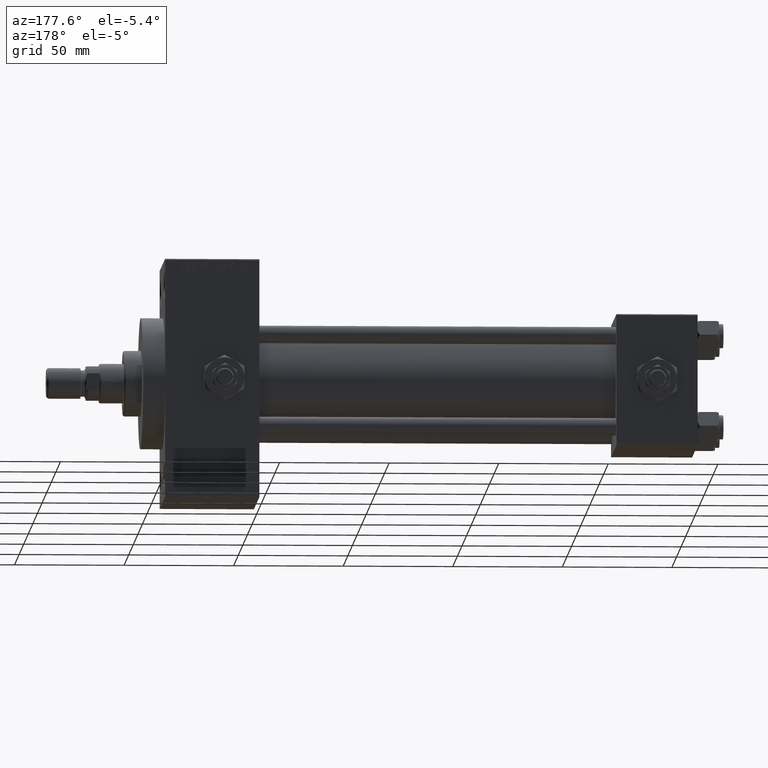
[diagram: clean part render]
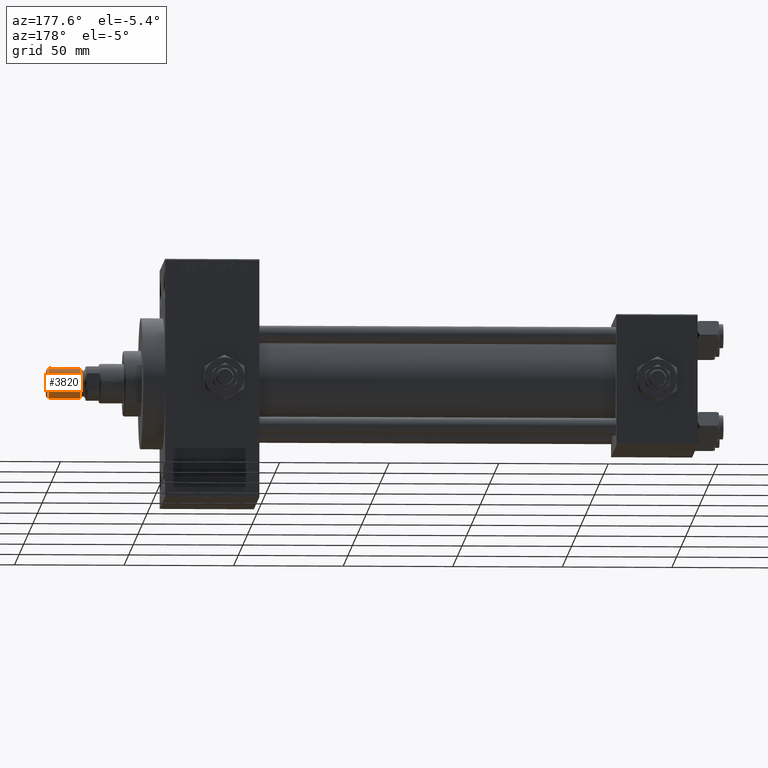
[diagram: same view with one face highlighted and labeled with its STEP entity id]
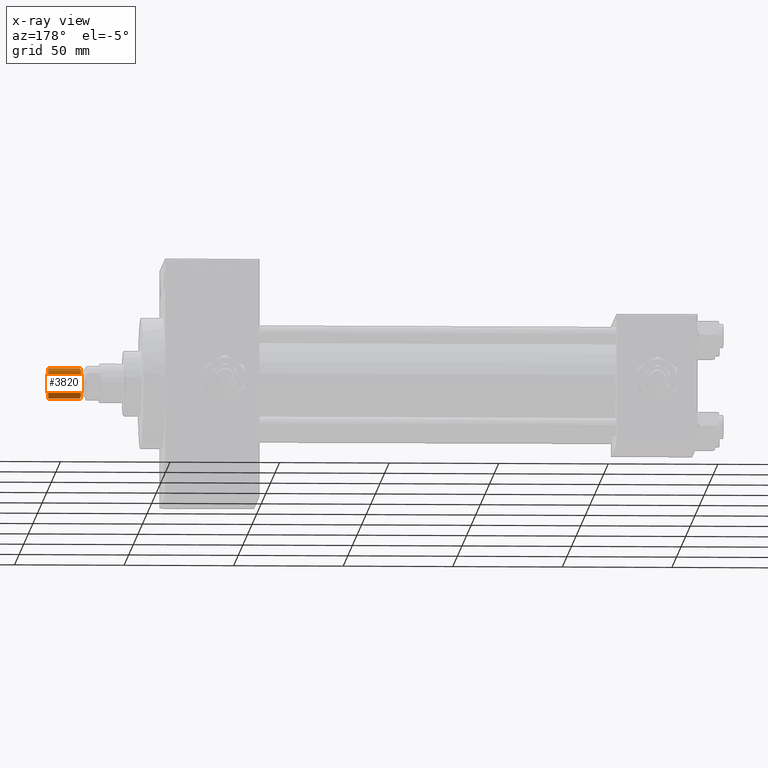
[diagram: x-ray of the same camera — body ghosted, the highlighted face saturated]
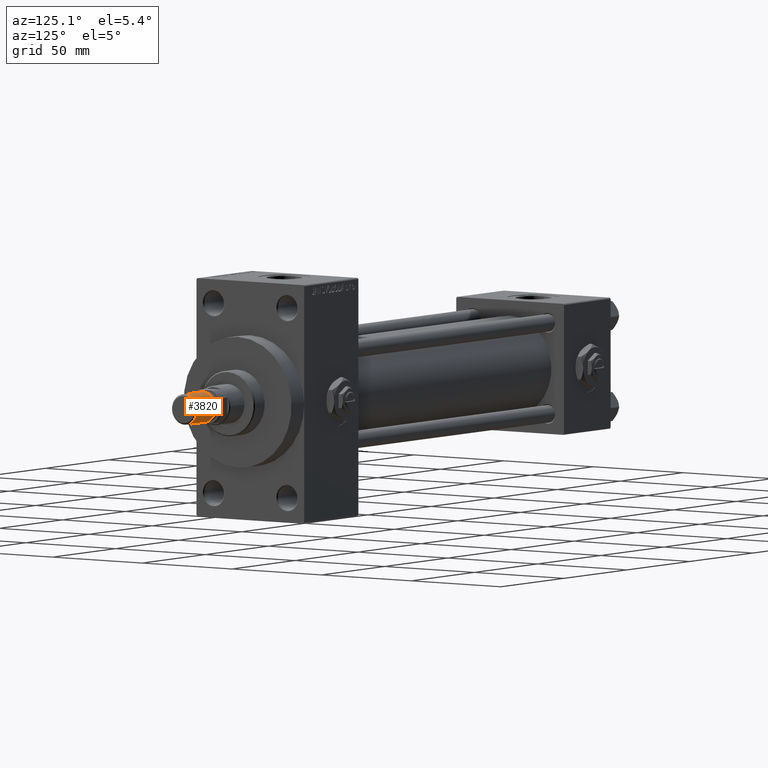
[diagram: same view with one face highlighted and labeled with its STEP entity id]
A machine part, auxiliary view. The second image highlights one B-rep face of the part: STEP entity #3820.
The next image is the same camera in x-ray: the body ghosted, the highlighted face saturated — about 0% of this face is hidden behind the body in this view.
A second angle (auxiliary view) of the same face is appended — the face is thin or edge-on in the first view.
In plain terms, the highlighted cylindrical surface (edge-blend (fillet) strip) has radius 7 mm, axis along (1, -0, -0).
Its self-contained STEP definition (entity closure, byte-faithful):
#2809 = CYLINDRICAL_SURFACE ( 'NONE', #39796, 7.000000000000000000 ) ;
#3030 = CARTESIAN_POINT ( 'NONE',  ( 7.000000000000000000, 8.572527594031473190E-16, 15.50000000000000000 ) ) ;
#3820 = ADVANCED_FACE ( 'NONE', ( #17437 ), #2809, .T. ) ;
#3925 = ORIENTED_EDGE ( 'NONE', *, *, #33047, .F. ) ;
#4617 = CARTESIAN_POINT ( 'NONE',  ( 0.000000000000000000, 0.000000000000000000, 0.8000000000000020428 ) ) ;
#5225 = CARTESIAN_POINT ( 'NONE',  ( -7.000000000000000000, 0.000000000000000000, 15.50000000000000000 ) ) ;
#5639 = CARTESIAN_POINT ( 'NONE',  ( -7.000000000000000000, 0.000000000000000000, 15.50000000000000000 ) ) ;
#5884 = LINE ( 'NONE', #5639, #37312 ) ;
#6820 = DIRECTION ( 'NONE',  ( -1.000000000000000000, 0.000000000000000000, 0.000000000000000000 ) ) ;
#10555 = DIRECTION ( 'NONE',  ( -0.000000000000000000, -0.000000000000000000, -1.000000000000000000 ) ) ;
#11604 = CIRCLE ( 'NONE', #24486, 7.000000000000000000 ) ;
#13452 = EDGE_CURVE ( 'NONE', #49232, #21329, #35250, .T. ) ;
#14314 = AXIS2_PLACEMENT_3D ( 'NONE', #4617, #24004, #32308 ) ;
#17437 = FACE_OUTER_BOUND ( 'NONE', #23691, .T. ) ;
#17944 = ORIENTED_EDGE ( 'NONE', *, *, #13452, .T. ) ;
#21329 = VERTEX_POINT ( 'NONE', #34199 ) ;
#21431 = VERTEX_POINT ( 'NONE', #5225 ) ;
#23056 = ORIENTED_EDGE ( 'NONE', *, *, #32413, .T. ) ;
#23691 = EDGE_LOOP ( 'NONE', ( #36657, #23056, #17944, #3925 ) ) ;
#24004 = DIRECTION ( 'NONE',  ( -0.000000000000000000, -0.000000000000000000, 1.000000000000000000 ) ) ;
#24486 = AXIS2_PLACEMENT_3D ( 'NONE', #26257, #30031, #45876 ) ;
#25465 = CARTESIAN_POINT ( 'NONE',  ( 0.000000000000000000, 0.000000000000000000, 15.50000000000000000 ) ) ;
#26257 = CARTESIAN_POINT ( 'NONE',  ( 0.000000000000000000, 0.000000000000000000, 15.50000000000000000 ) ) ;
#30031 = DIRECTION ( 'NONE',  ( 0.000000000000000000, 0.000000000000000000, 1.000000000000000000 ) ) ;
#32308 = DIRECTION ( 'NONE',  ( 1.000000000000000000, 0.000000000000000000, 0.000000000000000000 ) ) ;
#32413 = EDGE_CURVE ( 'NONE', #36754, #49232, #41041, .T. ) ;
#32786 = DIRECTION ( 'NONE',  ( -0.000000000000000000, -0.000000000000000000, -1.000000000000000000 ) ) ;
#33047 = EDGE_CURVE ( 'NONE', #21431, #21329, #5884, .T. ) ;
#34199 = CARTESIAN_POINT ( 'NONE',  ( -7.000000000000000000, 0.000000000000000000, 0.8000000000000020428 ) ) ;
#34622 = EDGE_CURVE ( 'NONE', #36754, #21431, #11604, .T. ) ;
#35250 = CIRCLE ( 'NONE', #14314, 7.000000000000000000 ) ;
#36657 = ORIENTED_EDGE ( 'NONE', *, *, #34622, .F. ) ;
#36754 = VERTEX_POINT ( 'NONE', #41618 ) ;
#37312 = VECTOR ( 'NONE', #40372, 1000.000000000000000 ) ;
#39796 = AXIS2_PLACEMENT_3D ( 'NONE', #25465, #32786, #6820 ) ;
#40372 = DIRECTION ( 'NONE',  ( -0.000000000000000000, -0.000000000000000000, -1.000000000000000000 ) ) ;
#41041 = LINE ( 'NONE', #3030, #45277 ) ;
#41618 = CARTESIAN_POINT ( 'NONE',  ( 7.000000000000000000, 8.572527594031473190E-16, 15.50000000000000000 ) ) ;
#42760 = CARTESIAN_POINT ( 'NONE',  ( 7.000000000000000000, 8.572527594031473190E-16, 0.8000000000000020428 ) ) ;
#45277 = VECTOR ( 'NONE', #10555, 1000.000000000000000 ) ;
#45876 = DIRECTION ( 'NONE',  ( 1.000000000000000000, 0.000000000000000000, 0.000000000000000000 ) ) ;
#49232 = VERTEX_POINT ( 'NONE', #42760 ) ;